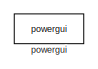
[diagram: root canvas - part 1/19, top left region]
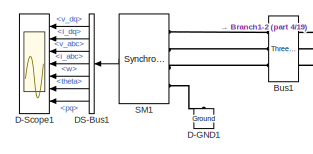
[diagram: root canvas - part 2/19, top left region]
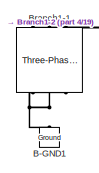
[diagram: root canvas - part 3/19, top left region]
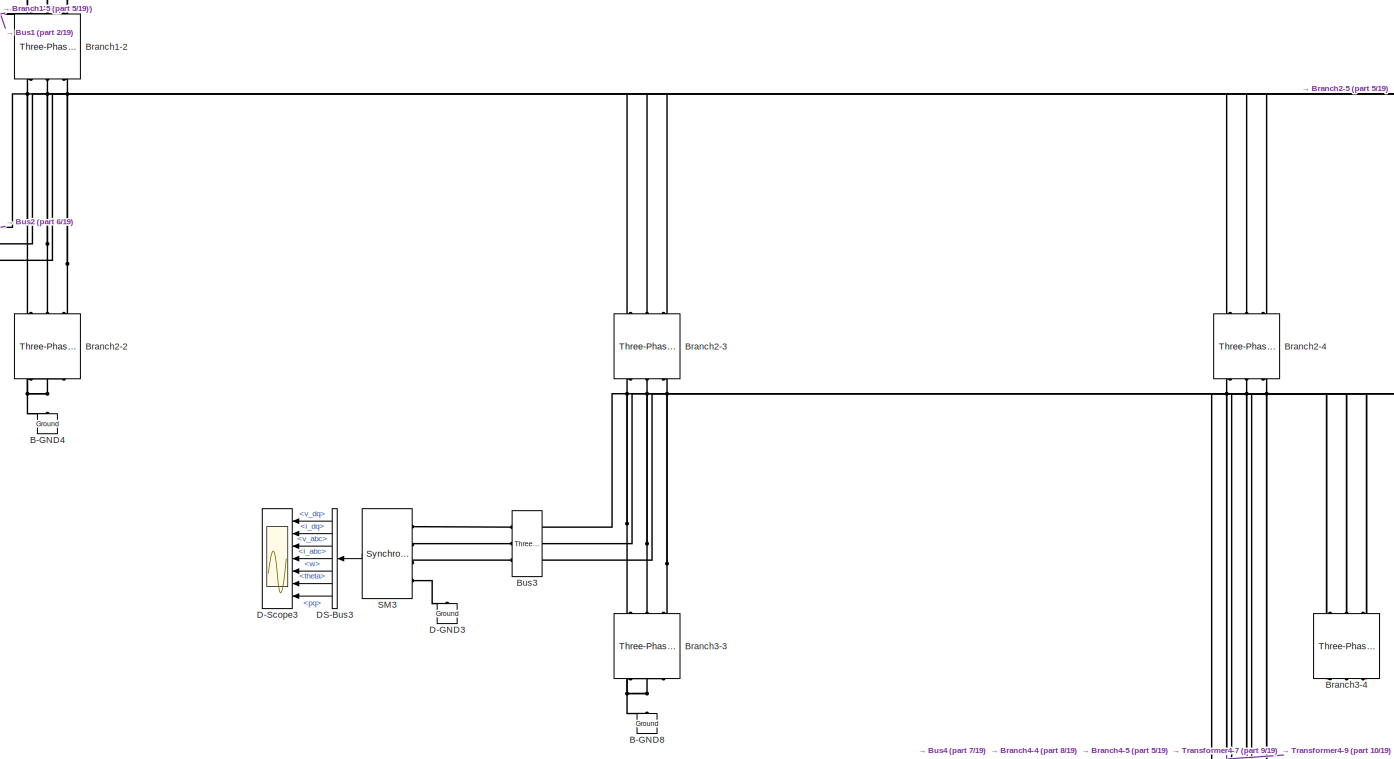
[diagram: root canvas - part 4/19, top left region]
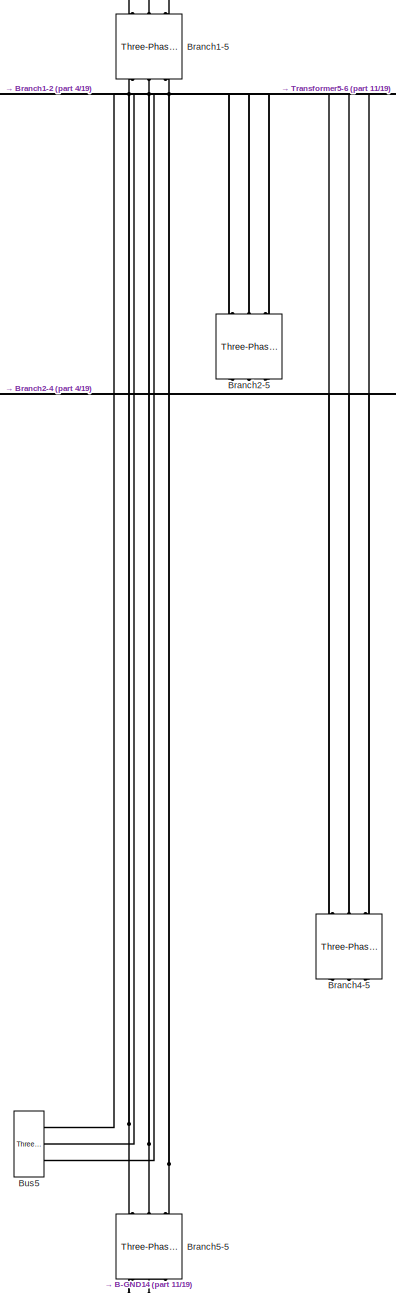
[diagram: root canvas - part 5/19, top center region]
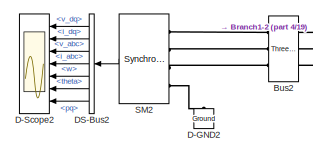
[diagram: root canvas - part 6/19, top left region]
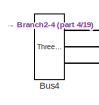
[diagram: root canvas - part 7/19, top left region]
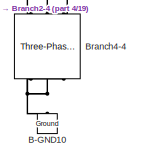
[diagram: root canvas - part 8/19, top left region]
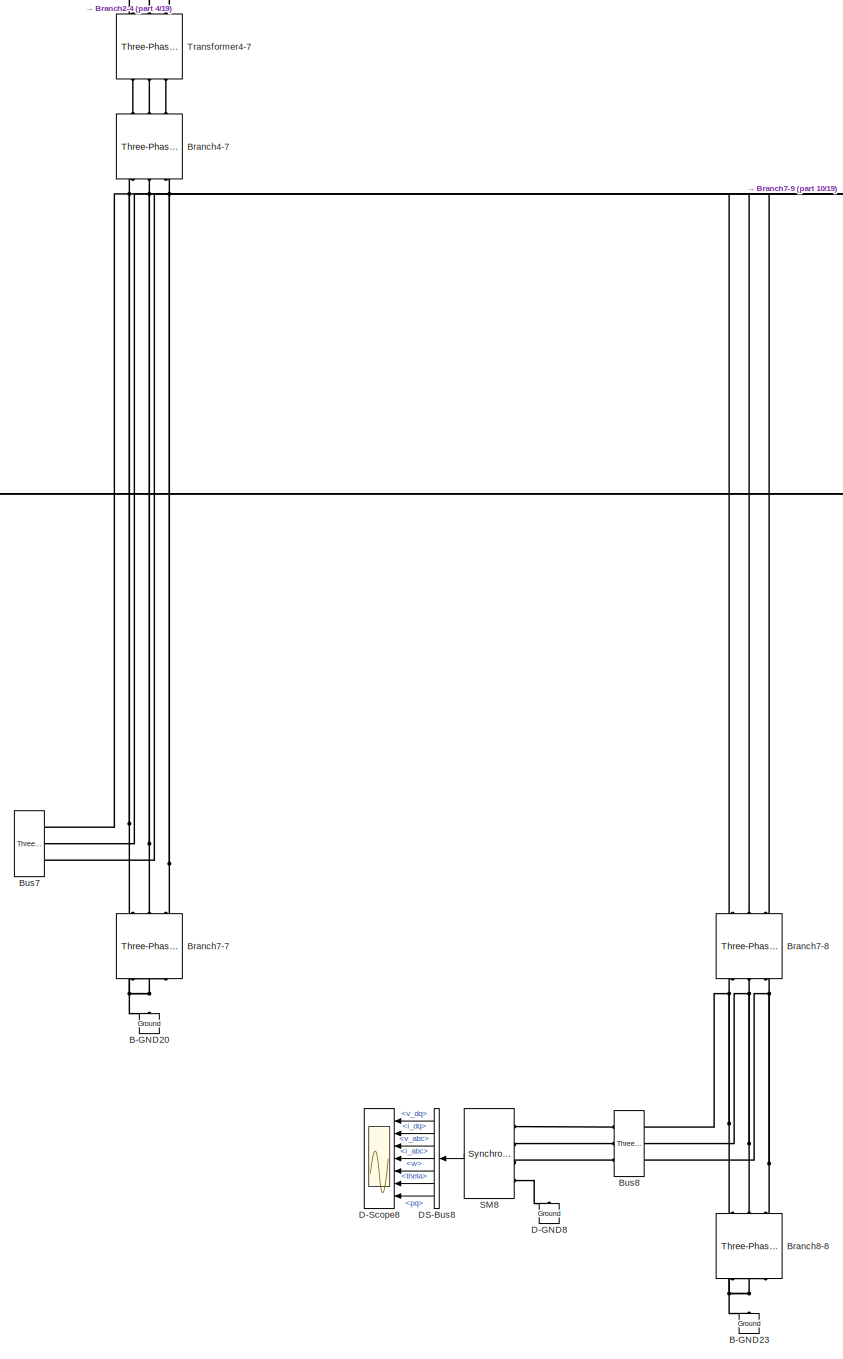
[diagram: root canvas - part 9/19, central region]
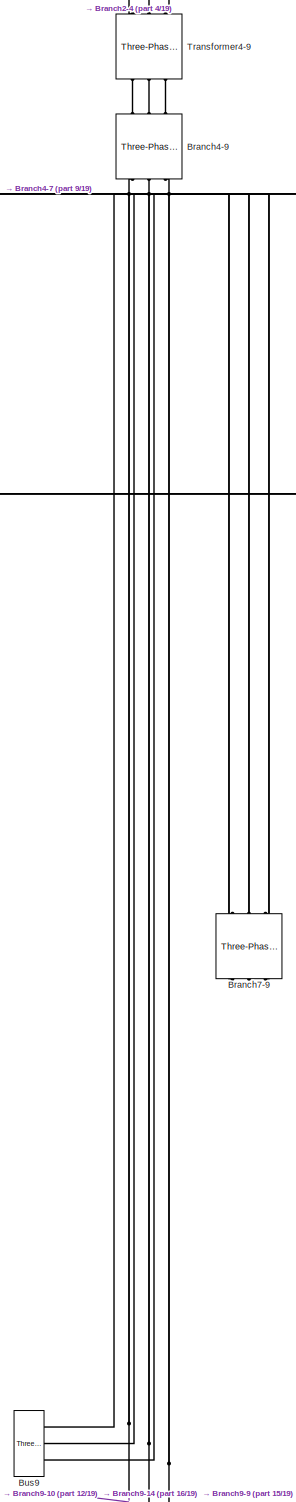
[diagram: root canvas - part 10/19, central region]
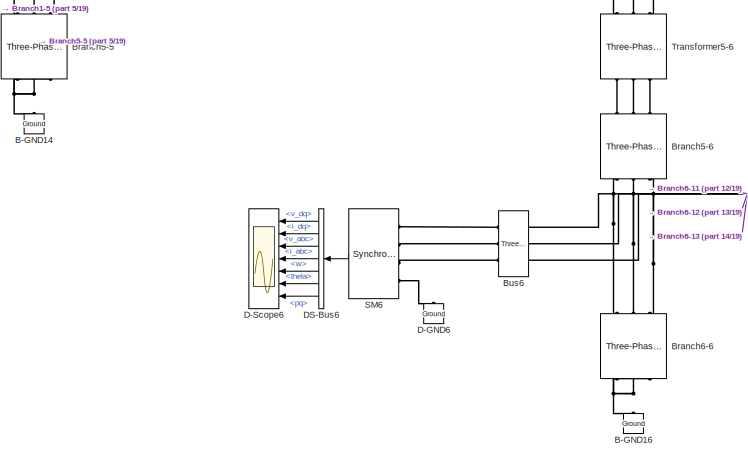
[diagram: root canvas - part 11/19, central region]
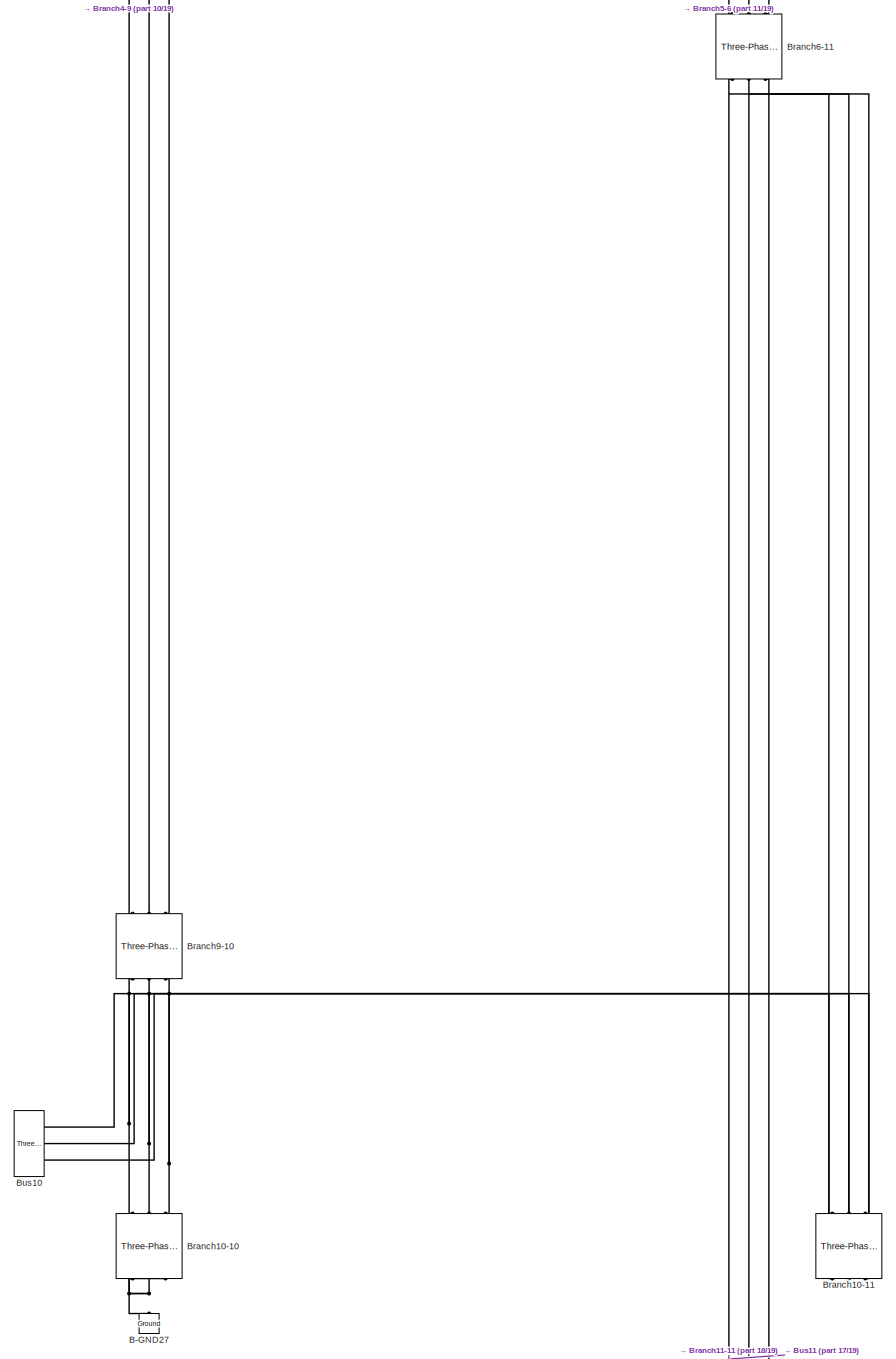
[diagram: root canvas - part 12/19, middle right region]
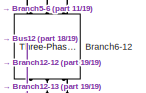
[diagram: root canvas - part 13/19, middle right region]
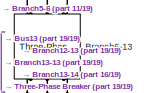
[diagram: root canvas - part 14/19, middle right region]
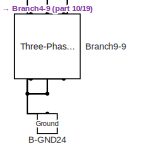
[diagram: root canvas - part 15/19, central region]
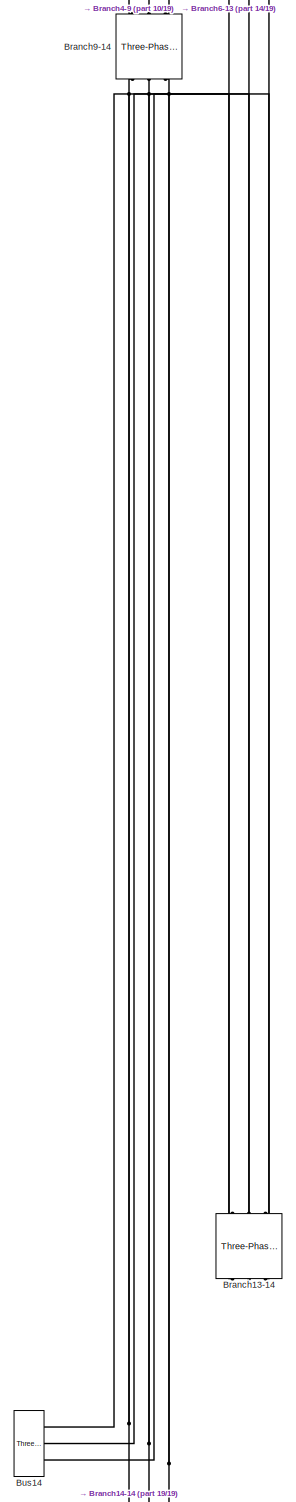
[diagram: root canvas - part 16/19, bottom right region]
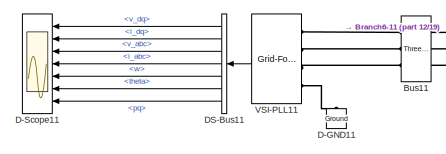
[diagram: root canvas - part 17/19, bottom right region]
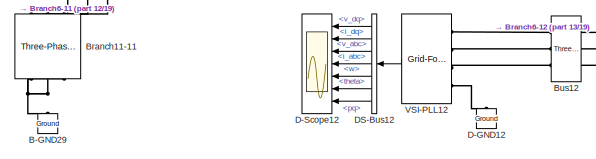
[diagram: root canvas - part 18/19, bottom right region]
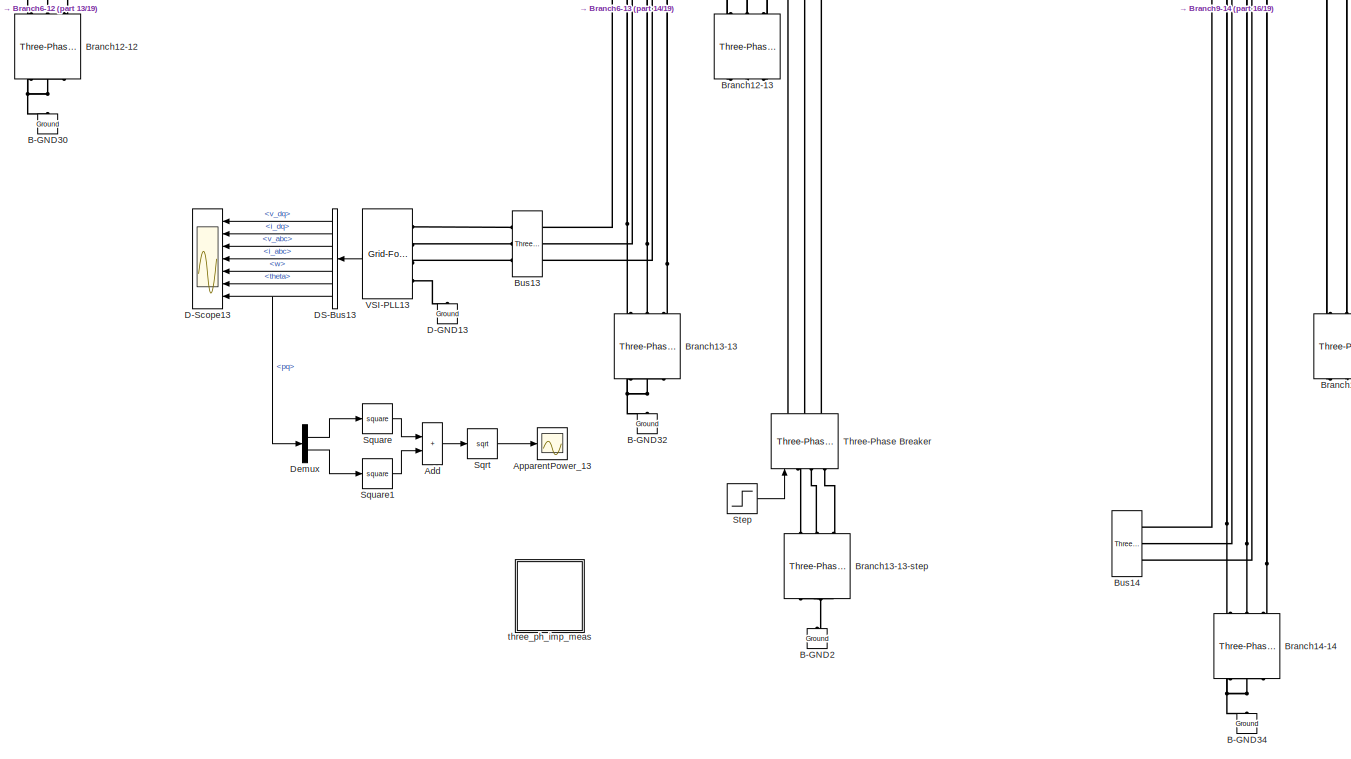
[diagram: root canvas - part 19/19, bottom right region]
MODEL slx_205a70458e50
KIND model
CONFIG AbsTol = auto
CONFIG EnableMultiTasking = off
CONFIG FixedStep = Ts
CONFIG MaxStep = auto
CONFIG MinStep = auto
CONFIG RelTol = 1e-3
CONFIG SampleTimeConstraint = Unconstrained
CONFIG SolverName = FixedStepAuto
CONFIG StartTime = 0
CONFIG StopTime = 40
BLOCK [Sum] Add
  IconShape = rectangular
  Ports = [2, 1]
BLOCK [Scope] ApparentPower_13
  Floating = off
  NumInputPorts = 1
  Ports = [1]
  ScopeSpecificationString = Simulink.scopes.TimeScopeBlockCfg('CurrentConfiguration', extmgr.ConfigurationSet(extmgr.Configuration('Core','General UI',true),extmgr.Configuration('Core','Source UI',true),extmgr.Configuration('Sources','WiredSimulink',true,'DataLoggingVariableName','Scope_S13','DataLogging',true,'DataLoggingSaveFormat','StructureWithTime'),extmgr.Configuration('Visuals','Time Domain',true,'SerializedDisplays',...<+1832ch>
BLOCK [Reference] B-GND1  REF=powerlib/Elements/Ground
  NameLocation = right
  Ports = [0, 0, 0, 0, 0, 1]
  SourceBlock = powerlib/Elements/Ground
  SourceProductBaseCode = PS
  SourceType = Ground
BLOCK [Reference] B-GND10  REF=powerlib/Elements/Ground
  NameLocation = right
  Ports = [0, 0, 0, 0, 0, 1]
  SourceBlock = powerlib/Elements/Ground
  SourceProductBaseCode = PS
  SourceType = Ground
BLOCK [Reference] B-GND14  REF=powerlib/Elements/Ground
  NameLocation = right
  Ports = [0, 0, 0, 0, 0, 1]
  SourceBlock = powerlib/Elements/Ground
  SourceProductBaseCode = PS
  SourceType = Ground
BLOCK [Reference] B-GND16  REF=powerlib/Elements/Ground
  NameLocation = right
  Ports = [0, 0, 0, 0, 0, 1]
  SourceBlock = powerlib/Elements/Ground
  SourceProductBaseCode = PS
  SourceType = Ground
BLOCK [Reference] B-GND2  REF=powerlib/Elements/Ground
  NameLocation = right
  Ports = [0, 0, 0, 0, 0, 1]
  SourceBlock = powerlib/Elements/Ground
  SourceProductBaseCode = PS
  SourceType = Ground
BLOCK [Reference] B-GND20  REF=powerlib/Elements/Ground
  NameLocation = right
  Ports = [0, 0, 0, 0, 0, 1]
  SourceBlock = powerlib/Elements/Ground
  SourceProductBaseCode = PS
  SourceType = Ground
BLOCK [Reference] B-GND23  REF=powerlib/Elements/Ground
  NameLocation = right
  Ports = [0, 0, 0, 0, 0, 1]
  SourceBlock = powerlib/Elements/Ground
  SourceProductBaseCode = PS
  SourceType = Ground
BLOCK [Reference] B-GND24  REF=powerlib/Elements/Ground
  NameLocation = right
  Ports = [0, 0, 0, 0, 0, 1]
  SourceBlock = powerlib/Elements/Ground
  SourceProductBaseCode = PS
  SourceType = Ground
BLOCK [Reference] B-GND27  REF=powerlib/Elements/Ground
  NameLocation = right
  Ports = [0, 0, 0, 0, 0, 1]
  SourceBlock = powerlib/Elements/Ground
  SourceProductBaseCode = PS
  SourceType = Ground
BLOCK [Reference] B-GND29  REF=powerlib/Elements/Ground
  NameLocation = right
  Ports = [0, 0, 0, 0, 0, 1]
  SourceBlock = powerlib/Elements/Ground
  SourceProductBaseCode = PS
  SourceType = Ground
BLOCK [Reference] B-GND30  REF=powerlib/Elements/Ground
  NameLocation = right
  Ports = [0, 0, 0, 0, 0, 1]
  SourceBlock = powerlib/Elements/Ground
  SourceProductBaseCode = PS
  SourceType = Ground
BLOCK [Reference] B-GND32  REF=powerlib/Elements/Ground
  NameLocation = right
  Ports = [0, 0, 0, 0, 0, 1]
  SourceBlock = powerlib/Elements/Ground
  SourceProductBaseCode = PS
  SourceType = Ground
BLOCK [Reference] B-GND34  REF=powerlib/Elements/Ground
  NameLocation = right
  Ports = [0, 0, 0, 0, 0, 1]
  SourceBlock = powerlib/Elements/Ground
  SourceProductBaseCode = PS
  SourceType = Ground
BLOCK [Reference] B-GND4  REF=powerlib/Elements/Ground
  NameLocation = right
  Ports = [0, 0, 0, 0, 0, 1]
  SourceBlock = powerlib/Elements/Ground
  SourceProductBaseCode = PS
  SourceType = Ground
BLOCK [Reference] B-GND8  REF=powerlib/Elements/Ground
  NameLocation = right
  Ports = [0, 0, 0, 0, 0, 1]
  SourceBlock = powerlib/Elements/Ground
  SourceProductBaseCode = PS
  SourceType = Ground
BLOCK [Reference] Branch1-1  REF=powerlib/Elements/Three-Phase
Parallel RLC Branch
  AttributesFormatString = \n
  NameLocation = right
  Ports = [0, 0, 0, 0, 0, 3, 3]
  SourceBlock = powerlib/Elements/Three-Phase\nParallel RLC Branch
  SourceProductBaseCode = PS
  SourceType = Three-Phase Parallel RLC Branch
BLOCK [Reference] Branch1-2  REF=powerlib/Elements/Three-Phase
Series RLC Branch
  AttributesFormatString = \n
  NameLocation = right
  Ports = [0, 0, 0, 0, 0, 3, 3]
  SourceBlock = powerlib/Elements/Three-Phase\nSeries RLC Branch
  SourceProductBaseCode = PS
  SourceType = Three-Phase Series RLC Branch
BLOCK [Reference] Branch1-5  REF=powerlib/Elements/Three-Phase
Series RLC Branch
  AttributesFormatString = \n
  NameLocation = right
  Ports = [0, 0, 0, 0, 0, 3, 3]
  SourceBlock = powerlib/Elements/Three-Phase\nSeries RLC Branch
  SourceProductBaseCode = PS
  SourceType = Three-Phase Series RLC Branch
BLOCK [Reference] Branch10-10  REF=powerlib/Elements/Three-Phase
Parallel RLC Branch
  AttributesFormatString = \n
  NameLocation = right
  Ports = [0, 0, 0, 0, 0, 3, 3]
  SourceBlock = powerlib/Elements/Three-Phase\nParallel RLC Branch
  SourceProductBaseCode = PS
  SourceType = Three-Phase Parallel RLC Branch
BLOCK [Reference] Branch10-11  REF=powerlib/Elements/Three-Phase
Series RLC Branch
  AttributesFormatString = \n
  NameLocation = right
  Ports = [0, 0, 0, 0, 0, 3, 3]
  SourceBlock = powerlib/Elements/Three-Phase\nSeries RLC Branch
  SourceProductBaseCode = PS
  SourceType = Three-Phase Series RLC Branch
BLOCK [Reference] Branch11-11  REF=powerlib/Elements/Three-Phase
Parallel RLC Branch
  AttributesFormatString = \n
  NameLocation = right
  Ports = [0, 0, 0, 0, 0, 3, 3]
  SourceBlock = powerlib/Elements/Three-Phase\nParallel RLC Branch
  SourceProductBaseCode = PS
  SourceType = Three-Phase Parallel RLC Branch
BLOCK [Reference] Branch12-12  REF=powerlib/Elements/Three-Phase
Parallel RLC Branch
  AttributesFormatString = \n
  NameLocation = right
  Ports = [0, 0, 0, 0, 0, 3, 3]
  SourceBlock = powerlib/Elements/Three-Phase\nParallel RLC Branch
  SourceProductBaseCode = PS
  SourceType = Three-Phase Parallel RLC Branch
BLOCK [Reference] Branch12-13  REF=powerlib/Elements/Three-Phase
Series RLC Branch
  AttributesFormatString = \n
  NameLocation = right
  Ports = [0, 0, 0, 0, 0, 3, 3]
  SourceBlock = powerlib/Elements/Three-Phase\nSeries RLC Branch
  SourceProductBaseCode = PS
  SourceType = Three-Phase Series RLC Branch
BLOCK [Reference] Branch13-13  REF=powerlib/Elements/Three-Phase
Parallel RLC Branch
  AttributesFormatString = \n
  NameLocation = right
  Ports = [0, 0, 0, 0, 0, 3, 3]
  SourceBlock = powerlib/Elements/Three-Phase\nParallel RLC Branch
  SourceProductBaseCode = PS
  SourceType = Three-Phase Parallel RLC Branch
BLOCK [Reference] Branch13-13-step  REF=powerlib/Elements/Three-Phase
Parallel RLC Branch
  AttributesFormatString = \n
  NameLocation = right
  Ports = [0, 0, 0, 0, 0, 3, 3]
  SourceBlock = powerlib/Elements/Three-Phase\nParallel RLC Branch
  SourceProductBaseCode = PS
  SourceType = Three-Phase Parallel RLC Branch
BLOCK [Reference] Branch13-14  REF=powerlib/Elements/Three-Phase
Series RLC Branch
  AttributesFormatString = \n
  NameLocation = right
  Ports = [0, 0, 0, 0, 0, 3, 3]
  SourceBlock = powerlib/Elements/Three-Phase\nSeries RLC Branch
  SourceProductBaseCode = PS
  SourceType = Three-Phase Series RLC Branch
BLOCK [Reference] Branch14-14  REF=powerlib/Elements/Three-Phase
Parallel RLC Branch
  AttributesFormatString = \n
  NameLocation = right
  Ports = [0, 0, 0, 0, 0, 3, 3]
  SourceBlock = powerlib/Elements/Three-Phase\nParallel RLC Branch
  SourceProductBaseCode = PS
  SourceType = Three-Phase Parallel RLC Branch
BLOCK [Reference] Branch2-2  REF=powerlib/Elements/Three-Phase
Parallel RLC Branch
  AttributesFormatString = \n
  NameLocation = right
  Ports = [0, 0, 0, 0, 0, 3, 3]
  SourceBlock = powerlib/Elements/Three-Phase\nParallel RLC Branch
  SourceProductBaseCode = PS
  SourceType = Three-Phase Parallel RLC Branch
BLOCK [Reference] Branch2-3  REF=powerlib/Elements/Three-Phase
Series RLC Branch
  AttributesFormatString = \n
  NameLocation = right
  Ports = [0, 0, 0, 0, 0, 3, 3]
  SourceBlock = powerlib/Elements/Three-Phase\nSeries RLC Branch
  SourceProductBaseCode = PS
  SourceType = Three-Phase Series RLC Branch
BLOCK [Reference] Branch2-4  REF=powerlib/Elements/Three-Phase
Series RLC Branch
  AttributesFormatString = \n
  NameLocation = right
  Ports = [0, 0, 0, 0, 0, 3, 3]
  SourceBlock = powerlib/Elements/Three-Phase\nSeries RLC Branch
  SourceProductBaseCode = PS
  SourceType = Three-Phase Series RLC Branch
BLOCK [Reference] Branch2-5  REF=powerlib/Elements/Three-Phase
Series RLC Branch
  AttributesFormatString = \n
  NameLocation = right
  Ports = [0, 0, 0, 0, 0, 3, 3]
  SourceBlock = powerlib/Elements/Three-Phase\nSeries RLC Branch
  SourceProductBaseCode = PS
  SourceType = Three-Phase Series RLC Branch
BLOCK [Reference] Branch3-3  REF=powerlib/Elements/Three-Phase
Parallel RLC Branch
  AttributesFormatString = \n
  NameLocation = right
  Ports = [0, 0, 0, 0, 0, 3, 3]
  SourceBlock = powerlib/Elements/Three-Phase\nParallel RLC Branch
  SourceProductBaseCode = PS
  SourceType = Three-Phase Parallel RLC Branch
BLOCK [Reference] Branch3-4  REF=powerlib/Elements/Three-Phase
Series RLC Branch
  AttributesFormatString = \n
  NameLocation = right
  Ports = [0, 0, 0, 0, 0, 3, 3]
  SourceBlock = powerlib/Elements/Three-Phase\nSeries RLC Branch
  SourceProductBaseCode = PS
  SourceType = Three-Phase Series RLC Branch
BLOCK [Reference] Branch4-4  REF=powerlib/Elements/Three-Phase
Parallel RLC Branch
  AttributesFormatString = \n
  NameLocation = right
  Ports = [0, 0, 0, 0, 0, 3, 3]
  SourceBlock = powerlib/Elements/Three-Phase\nParallel RLC Branch
  SourceProductBaseCode = PS
  SourceType = Three-Phase Parallel RLC Branch
BLOCK [Reference] Branch4-5  REF=powerlib/Elements/Three-Phase
Series RLC Branch
  AttributesFormatString = \n
  NameLocation = right
  Ports = [0, 0, 0, 0, 0, 3, 3]
  SourceBlock = powerlib/Elements/Three-Phase\nSeries RLC Branch
  SourceProductBaseCode = PS
  SourceType = Three-Phase Series RLC Branch
BLOCK [Reference] Branch4-7  REF=powerlib/Elements/Three-Phase
Series RLC Branch
  AttributesFormatString = \n
  NameLocation = right
  Ports = [0, 0, 0, 0, 0, 3, 3]
  SourceBlock = powerlib/Elements/Three-Phase\nSeries RLC Branch
  SourceProductBaseCode = PS
  SourceType = Three-Phase Series RLC Branch
BLOCK [Reference] Branch4-9  REF=powerlib/Elements/Three-Phase
Series RLC Branch
  AttributesFormatString = \n
  NameLocation = right
  Ports = [0, 0, 0, 0, 0, 3, 3]
  SourceBlock = powerlib/Elements/Three-Phase\nSeries RLC Branch
  SourceProductBaseCode = PS
  SourceType = Three-Phase Series RLC Branch
BLOCK [Reference] Branch5-5  REF=powerlib/Elements/Three-Phase
Parallel RLC Branch
  AttributesFormatString = \n
  NameLocation = right
  Ports = [0, 0, 0, 0, 0, 3, 3]
  SourceBlock = powerlib/Elements/Three-Phase\nParallel RLC Branch
  SourceProductBaseCode = PS
  SourceType = Three-Phase Parallel RLC Branch
BLOCK [Reference] Branch5-6  REF=powerlib/Elements/Three-Phase
Series RLC Branch
  AttributesFormatString = \n
  NameLocation = right
  Ports = [0, 0, 0, 0, 0, 3, 3]
  SourceBlock = powerlib/Elements/Three-Phase\nSeries RLC Branch
  SourceProductBaseCode = PS
  SourceType = Three-Phase Series RLC Branch
BLOCK [Reference] Branch6-11  REF=powerlib/Elements/Three-Phase
Series RLC Branch
  AttributesFormatString = \n
  NameLocation = right
  Ports = [0, 0, 0, 0, 0, 3, 3]
  SourceBlock = powerlib/Elements/Three-Phase\nSeries RLC Branch
  SourceProductBaseCode = PS
  SourceType = Three-Phase Series RLC Branch
BLOCK [Reference] Branch6-12  REF=powerlib/Elements/Three-Phase
Series RLC Branch
  AttributesFormatString = \n
  NameLocation = right
  Ports = [0, 0, 0, 0, 0, 3, 3]
  SourceBlock = powerlib/Elements/Three-Phase\nSeries RLC Branch
  SourceProductBaseCode = PS
  SourceType = Three-Phase Series RLC Branch
BLOCK [Reference] Branch6-13  REF=powerlib/Elements/Three-Phase
Series RLC Branch
  AttributesFormatString = \n
  NameLocation = right
  Ports = [0, 0, 0, 0, 0, 3, 3]
  SourceBlock = powerlib/Elements/Three-Phase\nSeries RLC Branch
  SourceProductBaseCode = PS
  SourceType = Three-Phase Series RLC Branch
BLOCK [Reference] Branch6-6  REF=powerlib/Elements/Three-Phase
Parallel RLC Branch
  AttributesFormatString = \n
  NameLocation = right
  Ports = [0, 0, 0, 0, 0, 3, 3]
  SourceBlock = powerlib/Elements/Three-Phase\nParallel RLC Branch
  SourceProductBaseCode = PS
  SourceType = Three-Phase Parallel RLC Branch
BLOCK [Reference] Branch7-7  REF=powerlib/Elements/Three-Phase
Parallel RLC Branch
  AttributesFormatString = \n
  NameLocation = right
  Ports = [0, 0, 0, 0, 0, 3, 3]
  SourceBlock = powerlib/Elements/Three-Phase\nParallel RLC Branch
  SourceProductBaseCode = PS
  SourceType = Three-Phase Parallel RLC Branch
BLOCK [Reference] Branch7-8  REF=powerlib/Elements/Three-Phase
Series RLC Branch
  AttributesFormatString = \n
  NameLocation = right
  Ports = [0, 0, 0, 0, 0, 3, 3]
  SourceBlock = powerlib/Elements/Three-Phase\nSeries RLC Branch
  SourceProductBaseCode = PS
  SourceType = Three-Phase Series RLC Branch
BLOCK [Reference] Branch7-9  REF=powerlib/Elements/Three-Phase
Series RLC Branch
  AttributesFormatString = \n
  NameLocation = right
  Ports = [0, 0, 0, 0, 0, 3, 3]
  SourceBlock = powerlib/Elements/Three-Phase\nSeries RLC Branch
  SourceProductBaseCode = PS
  SourceType = Three-Phase Series RLC Branch
BLOCK [Reference] Branch8-8  REF=powerlib/Elements/Three-Phase
Parallel RLC Branch
  AttributesFormatString = \n
  NameLocation = right
  Ports = [0, 0, 0, 0, 0, 3, 3]
  SourceBlock = powerlib/Elements/Three-Phase\nParallel RLC Branch
  SourceProductBaseCode = PS
  SourceType = Three-Phase Parallel RLC Branch
BLOCK [Reference] Branch9-10  REF=powerlib/Elements/Three-Phase
Series RLC Branch
  AttributesFormatString = \n
  NameLocation = right
  Ports = [0, 0, 0, 0, 0, 3, 3]
  SourceBlock = powerlib/Elements/Three-Phase\nSeries RLC Branch
  SourceProductBaseCode = PS
  SourceType = Three-Phase Series RLC Branch
BLOCK [Reference] Branch9-14  REF=powerlib/Elements/Three-Phase
Series RLC Branch
  AttributesFormatString = \n
  NameLocation = right
  Ports = [0, 0, 0, 0, 0, 3, 3]
  SourceBlock = powerlib/Elements/Three-Phase\nSeries RLC Branch
  SourceProductBaseCode = PS
  SourceType = Three-Phase Series RLC Branch
BLOCK [Reference] Branch9-9  REF=powerlib/Elements/Three-Phase
Parallel RLC Branch
  AttributesFormatString = \n
  NameLocation = right
  Ports = [0, 0, 0, 0, 0, 3, 3]
  SourceBlock = powerlib/Elements/Three-Phase\nParallel RLC Branch
  SourceProductBaseCode = PS
  SourceType = Three-Phase Parallel RLC Branch
BLOCK [Reference] Bus1  REF=SimplusGT/Three-Phase Bus
  Ports = [0, 0, 0, 0, 0, 3, 3]
  SourceBlock = SimplusGT/Three-Phase Bus
  SourceProductName = Simplus Grid Tool
BLOCK [Reference] Bus10  REF=SimplusGT/Three-Phase Bus
  Ports = [0, 0, 0, 0, 0, 3, 3]
  SourceBlock = SimplusGT/Three-Phase Bus
  SourceProductName = Simplus Grid Tool
BLOCK [Reference] Bus11  REF=SimplusGT/Three-Phase Bus
  Ports = [0, 0, 0, 0, 0, 3, 3]
  SourceBlock = SimplusGT/Three-Phase Bus
  SourceProductName = Simplus Grid Tool
BLOCK [Reference] Bus12  REF=SimplusGT/Three-Phase Bus
  Ports = [0, 0, 0, 0, 0, 3, 3]
  SourceBlock = SimplusGT/Three-Phase Bus
  SourceProductName = Simplus Grid Tool
BLOCK [Reference] Bus13  REF=SimplusGT/Three-Phase Bus
  Ports = [0, 0, 0, 0, 0, 3, 3]
  SourceBlock = SimplusGT/Three-Phase Bus
  SourceProductName = Simplus Grid Tool
BLOCK [Reference] Bus14  REF=SimplusGT/Three-Phase Bus
  Ports = [0, 0, 0, 0, 0, 3, 3]
  SourceBlock = SimplusGT/Three-Phase Bus
  SourceProductName = Simplus Grid Tool
BLOCK [Reference] Bus2  REF=SimplusGT/Three-Phase Bus
  Ports = [0, 0, 0, 0, 0, 3, 3]
  SourceBlock = SimplusGT/Three-Phase Bus
  SourceProductName = Simplus Grid Tool
BLOCK [Reference] Bus3  REF=SimplusGT/Three-Phase Bus
  Ports = [0, 0, 0, 0, 0, 3, 3]
  SourceBlock = SimplusGT/Three-Phase Bus
  SourceProductName = Simplus Grid Tool
BLOCK [Reference] Bus4  REF=SimplusGT/Three-Phase Bus
  Ports = [0, 0, 0, 0, 0, 3, 3]
  SourceBlock = SimplusGT/Three-Phase Bus
  SourceProductName = Simplus Grid Tool
BLOCK [Reference] Bus5  REF=SimplusGT/Three-Phase Bus
  Ports = [0, 0, 0, 0, 0, 3, 3]
  SourceBlock = SimplusGT/Three-Phase Bus
  SourceProductName = Simplus Grid Tool
BLOCK [Reference] Bus6  REF=SimplusGT/Three-Phase Bus
  Ports = [0, 0, 0, 0, 0, 3, 3]
  SourceBlock = SimplusGT/Three-Phase Bus
  SourceProductName = Simplus Grid Tool
BLOCK [Reference] Bus7  REF=SimplusGT/Three-Phase Bus
  Ports = [0, 0, 0, 0, 0, 3, 3]
  SourceBlock = SimplusGT/Three-Phase Bus
  SourceProductName = Simplus Grid Tool
BLOCK [Reference] Bus8  REF=SimplusGT/Three-Phase Bus
  Ports = [0, 0, 0, 0, 0, 3, 3]
  SourceBlock = SimplusGT/Three-Phase Bus
  SourceProductName = Simplus Grid Tool
BLOCK [Reference] Bus9  REF=SimplusGT/Three-Phase Bus
  Ports = [0, 0, 0, 0, 0, 3, 3]
  SourceBlock = SimplusGT/Three-Phase Bus
  SourceProductName = Simplus Grid Tool
BLOCK [Reference] D-GND1  REF=powerlib/Elements/Ground
  NameLocation = right
  Ports = [0, 0, 0, 0, 0, 1]
  SourceBlock = powerlib/Elements/Ground
  SourceProductBaseCode = PS
  SourceType = Ground
BLOCK [Reference] D-GND11  REF=powerlib/Elements/Ground
  NameLocation = right
  Ports = [0, 0, 0, 0, 0, 1]
  SourceBlock = powerlib/Elements/Ground
  SourceProductBaseCode = PS
  SourceType = Ground
BLOCK [Reference] D-GND12  REF=powerlib/Elements/Ground
  NameLocation = right
  Ports = [0, 0, 0, 0, 0, 1]
  SourceBlock = powerlib/Elements/Ground
  SourceProductBaseCode = PS
  SourceType = Ground
BLOCK [Reference] D-GND13  REF=powerlib/Elements/Ground
  NameLocation = right
  Ports = [0, 0, 0, 0, 0, 1]
  SourceBlock = powerlib/Elements/Ground
  SourceProductBaseCode = PS
  SourceType = Ground
BLOCK [Reference] D-GND2  REF=powerlib/Elements/Ground
  NameLocation = right
  Ports = [0, 0, 0, 0, 0, 1]
  SourceBlock = powerlib/Elements/Ground
  SourceProductBaseCode = PS
  SourceType = Ground
BLOCK [Reference] D-GND3  REF=powerlib/Elements/Ground
  NameLocation = right
  Ports = [0, 0, 0, 0, 0, 1]
  SourceBlock = powerlib/Elements/Ground
  SourceProductBaseCode = PS
  SourceType = Ground
BLOCK [Reference] D-GND6  REF=powerlib/Elements/Ground
  NameLocation = right
  Ports = [0, 0, 0, 0, 0, 1]
  SourceBlock = powerlib/Elements/Ground
  SourceProductBaseCode = PS
  SourceType = Ground
BLOCK [Reference] D-GND8  REF=powerlib/Elements/Ground
  NameLocation = right
  Ports = [0, 0, 0, 0, 0, 1]
  SourceBlock = powerlib/Elements/Ground
  SourceProductBaseCode = PS
  SourceType = Ground
BLOCK [Scope] D-Scope1
  Floating = off
  NumInputPorts = 7
  Ports = [7]
  ScopeSpecificationString = Simulink.scopes.TimeScopeBlockCfg('CurrentConfiguration', extmgr.ConfigurationSet(extmgr.Configuration('Core','General UI',true),extmgr.Configuration('Core','Source UI',true),extmgr.Configuration('Sources','WiredSimulink',true),extmgr.Configuration('Visuals','Time Domain',true,'SerializedDisplays',{struct('MinYLimReal','-0.21285','MaxYLimReal','1.85988','YLabelReal','','MinYLimMag','0.00000','MaxY...<+5600ch>
BLOCK [Scope] D-Scope11
  Floating = off
  NumInputPorts = 7
  Ports = [7]
  ScopeSpecificationString = Simulink.scopes.TimeScopeBlockCfg('CurrentConfiguration', extmgr.ConfigurationSet(extmgr.Configuration('Core','General UI',true),extmgr.Configuration('Core','Source UI',true),extmgr.Configuration('Sources','WiredSimulink',true),extmgr.Configuration('Visuals','Time Domain',true,'SerializedDisplays',{struct('MinYLimReal','-0.20421','MaxYLimReal','1.2551','YLabelReal','','MinYLimMag','0.00000','MaxYL...<+5959ch>
BLOCK [Scope] D-Scope12
  Floating = off
  NumInputPorts = 7
  Ports = [7]
  ScopeSpecificationString = Simulink.scopes.TimeScopeBlockCfg('CurrentConfiguration', extmgr.ConfigurationSet(extmgr.Configuration('Core','General UI',true),extmgr.Configuration('Core','Source UI',true),extmgr.Configuration('Sources','WiredSimulink',true),extmgr.Configuration('Visuals','Time Domain',true,'SerializedDisplays',{struct('MinYLimReal','-0.18712','MaxYLimReal','1.26048','YLabelReal','','MinYLimMag','0.00000','MaxY...<+5987ch>
BLOCK [Scope] D-Scope13
  Floating = off
  NumInputPorts = 7
  Ports = [7]
  ScopeSpecificationString = Simulink.scopes.TimeScopeBlockCfg('CurrentConfiguration', extmgr.ConfigurationSet(extmgr.Configuration('Core','General UI',true),extmgr.Configuration('Core','Source UI',true),extmgr.Configuration('Sources','WiredSimulink',true),extmgr.Configuration('Visuals','Time Domain',true,'SerializedDisplays',{struct('MinYLimReal','-0.17265','MaxYLimReal','1.22724','YLabelReal','','MinYLimMag','0.00000','MaxY...<+5543ch>
BLOCK [Scope] D-Scope2
  Floating = off
  NumInputPorts = 7
  Ports = [7]
  ScopeSpecificationString = Simulink.scopes.TimeScopeBlockCfg('CurrentConfiguration', extmgr.ConfigurationSet(extmgr.Configuration('Core','General UI',true),extmgr.Configuration('Core','Source UI',true),extmgr.Configuration('Sources','WiredSimulink',true),extmgr.Configuration('Visuals','Time Domain',true,'SerializedDisplays',{struct('MinYLimReal','-0.25004','MaxYLimReal','1.85438','YLabelReal','','MinYLimMag','0.00000','MaxY...<+5544ch>
BLOCK [Scope] D-Scope3
  Floating = off
  NumInputPorts = 7
  Ports = [7]
  ScopeSpecificationString = Simulink.scopes.TimeScopeBlockCfg('CurrentConfiguration', extmgr.ConfigurationSet(extmgr.Configuration('Core','General UI',true),extmgr.Configuration('Core','Source UI',true),extmgr.Configuration('Sources','WiredSimulink',true),extmgr.Configuration('Visuals','Time Domain',true,'SerializedDisplays',{struct('MinYLimReal','-0.24066','MaxYLimReal','1.34262','YLabelReal','','MinYLimMag','0.00000','MaxY...<+5543ch>
BLOCK [Scope] D-Scope6
  Floating = off
  NumInputPorts = 7
  Ports = [7]
  ScopeSpecificationString = Simulink.scopes.TimeScopeBlockCfg('CurrentConfiguration', extmgr.ConfigurationSet(extmgr.Configuration('Core','General UI',true),extmgr.Configuration('Core','Source UI',true),extmgr.Configuration('Sources','WiredSimulink',true),extmgr.Configuration('Visuals','Time Domain',true,'SerializedDisplays',{struct('MinYLimReal','-0.18759','MaxYLimReal','1.23803','YLabelReal','','MinYLimMag','0.00000','MaxY...<+5628ch>
BLOCK [Scope] D-Scope8
  Floating = off
  NumInputPorts = 7
  Ports = [7]
  ScopeSpecificationString = Simulink.scopes.TimeScopeBlockCfg('CurrentConfiguration', extmgr.ConfigurationSet(extmgr.Configuration('Core','General UI',true),extmgr.Configuration('Core','Source UI',true),extmgr.Configuration('Sources','WiredSimulink',true),extmgr.Configuration('Visuals','Time Domain',true,'SerializedDisplays',{struct('MinYLimReal','-5.82637','MaxYLimReal','5.84122','YLabelReal','','MinYLimMag','0.00000','MaxY...<+5542ch>
BLOCK [BusSelector] DS-Bus1
  OutputSignals = v_dq,i_dq,v_abc,i_abc,w,theta,pq
  Ports = [1, 7]
BLOCK [BusSelector] DS-Bus11
  OutputSignals = v_dq,i_dq,v_abc,i_abc,w,theta,pq
  Ports = [1, 7]
BLOCK [BusSelector] DS-Bus12
  OutputSignals = v_dq,i_dq,v_abc,i_abc,w,theta,pq
  Ports = [1, 7]
BLOCK [BusSelector] DS-Bus13
  OutputSignals = v_dq,i_dq,v_abc,i_abc,w,theta,pq
  Ports = [1, 7]
BLOCK [BusSelector] DS-Bus2
  OutputSignals = v_dq,i_dq,v_abc,i_abc,w,theta,pq
  Ports = [1, 7]
BLOCK [BusSelector] DS-Bus3
  OutputSignals = v_dq,i_dq,v_abc,i_abc,w,theta,pq
  Ports = [1, 7]
BLOCK [BusSelector] DS-Bus6
  OutputSignals = v_dq,i_dq,v_abc,i_abc,w,theta,pq
  Ports = [1, 7]
BLOCK [BusSelector] DS-Bus8
  OutputSignals = v_dq,i_dq,v_abc,i_abc,w,theta,pq
  Ports = [1, 7]
BLOCK [Demux] Demux
  Outputs = 2
  Ports = [1, 2]
BLOCK [Reference] SM1  REF=SimplusGT/SynchronousMachineFull_Cyp_SMAVRPSSGOV (dq-Frame System Object)
  Ports = [0, 1, 0, 0, 0, 4]
  SourceBlock = SimplusGT/SynchronousMachineFull_Cyp_SMAVRPSSGOV (dq-Frame System Object)
  SourceProductName = Simplus Grid Tool
BLOCK [Reference] SM2  REF=SimplusGT/SynchronousMachineFull_Cyp_SMAVRPSSGOV (dq-Frame System Object)
  Ports = [0, 1, 0, 0, 0, 4]
  SourceBlock = SimplusGT/SynchronousMachineFull_Cyp_SMAVRPSSGOV (dq-Frame System Object)
  SourceProductName = Simplus Grid Tool
BLOCK [Reference] SM3  REF=SimplusGT/SynchronousMachineFull_Cyp_SMAVR (dq-Frame System Object)
  Ports = [0, 1, 0, 0, 0, 4]
  SourceBlock = SimplusGT/SynchronousMachineFull_Cyp_SMAVR (dq-Frame System Object)
  SourceProductName = Simplus Grid Tool
BLOCK [Reference] SM6  REF=SimplusGT/SynchronousMachineFull_Cyp_SMAVR (dq-Frame System Object)
  Ports = [0, 1, 0, 0, 0, 4]
  SourceBlock = SimplusGT/SynchronousMachineFull_Cyp_SMAVR (dq-Frame System Object)
  SourceProductName = Simplus Grid Tool
BLOCK [Reference] SM8  REF=SimplusGT/SynchronousMachineFull_Cyp_SMAVR (dq-Frame System Object)
  Ports = [0, 1, 0, 0, 0, 4]
  SourceBlock = SimplusGT/SynchronousMachineFull_Cyp_SMAVR (dq-Frame System Object)
  SourceProductName = Simplus Grid Tool
BLOCK [Sqrt] Sqrt
BLOCK [Math] Square
  Operator = square
  Ports = [1, 1]
  SignedPower = on
BLOCK [Math] Square1
  Operator = square
  Ports = [1, 1]
  SignedPower = on
BLOCK [Step] Step
  SampleTime = 0
  Time = 35
BLOCK [Reference] Three-Phase Breaker  REF=powerlib/Elements/Three-Phase Breaker
  NameLocation = right
  Ports = [1, 0, 0, 0, 0, 3, 3]
  SourceBlock = powerlib/Elements/Three-Phase Breaker
  SourceProductBaseCode = PS
  SourceType = Three-Phase Breaker
BLOCK [Reference] Transformer4-7  REF=powerlib/Elements/Three-Phase
Transformer
(Two Windings)
  NameLocation = right
  Ports = [0, 0, 0, 0, 0, 3, 3]
  SourceBlock = powerlib/Elements/Three-Phase\nTransformer\n(Two Windings)
  SourceProductBaseCode = PS
  SourceType = Three-Phase Transformer (Two Windings)
BLOCK [Reference] Transformer4-9  REF=powerlib/Elements/Three-Phase
Transformer
(Two Windings)
  NameLocation = right
  Ports = [0, 0, 0, 0, 0, 3, 3]
  SourceBlock = powerlib/Elements/Three-Phase\nTransformer\n(Two Windings)
  SourceProductBaseCode = PS
  SourceType = Three-Phase Transformer (Two Windings)
BLOCK [Reference] Transformer5-6  REF=powerlib/Elements/Three-Phase
Transformer
(Two Windings)
  NameLocation = right
  Ports = [0, 0, 0, 0, 0, 3, 3]
  SourceBlock = powerlib/Elements/Three-Phase\nTransformer\n(Two Windings)
  SourceProductBaseCode = PS
  SourceType = Three-Phase Transformer (Two Windings)
BLOCK [Reference] VSI-PLL11  REF=SimplusGT/Grid-Following
Voltage-Source Inverter
(dq-Frame System Object)
  Ports = [0, 1, 0, 0, 0, 4]
  SourceBlock = SimplusGT/Grid-Following\nVoltage-Source Inverter\n(dq-Frame System Object)
  SourceProductName = Simplus Grid Tool
BLOCK [Reference] VSI-PLL12  REF=SimplusGT/Grid-Following
Voltage-Source Inverter
(dq-Frame System Object)
  Ports = [0, 1, 0, 0, 0, 4]
  SourceBlock = SimplusGT/Grid-Following\nVoltage-Source Inverter\n(dq-Frame System Object)
  SourceProductName = Simplus Grid Tool
BLOCK [Reference] VSI-PLL13  REF=SimplusGT/Grid-Following
Voltage-Source Inverter
(dq-Frame System Object)
  Ports = [0, 1, 0, 0, 0, 4]
  SourceBlock = SimplusGT/Grid-Following\nVoltage-Source Inverter\n(dq-Frame System Object)
  SourceProductName = Simplus Grid Tool
BLOCK [Reference] powergui  REF=powerlib/powergui
  Ports = []
  Priority = 1
  SourceBlock = powerlib/powergui
  SourceProductBaseCode = PS
  SourceType = PSB option menu block
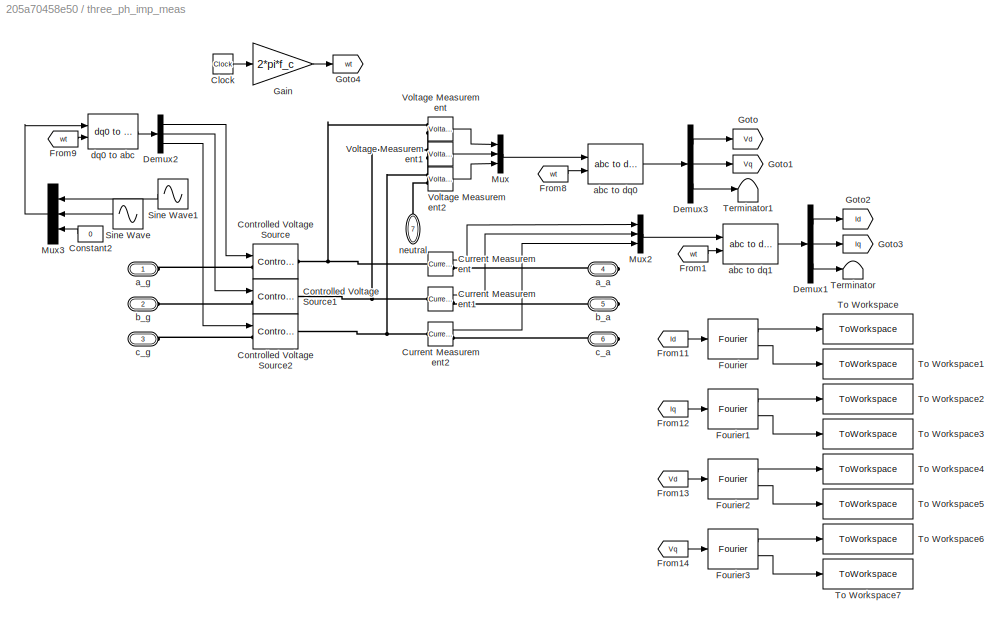
BLOCK [SubSystem] three_ph_imp_meas
  Ports = [0, 0, 0, 0, 0, 4, 3]
  RequestExecContextInheritance = off
BLOCK [Clock] three_ph_imp_meas/Clock
BLOCK [Constant] three_ph_imp_meas/Constant2
  NameLocation = top
  Value = 0
BLOCK [Reference] three_ph_imp_meas/Controlled Voltage Source  REF=powerlib/Electrical
Sources/Controlled Voltage Source
  Ports = [1, 0, 0, 0, 0, 1, 1]
  SourceBlock = powerlib/Electrical\nSources/Controlled Voltage Source
  SourceProductBaseCode = PS
  SourceType = Controlled Voltage Source
BLOCK [Reference] three_ph_imp_meas/Controlled Voltage Source1  REF=powerlib/Electrical
Sources/Controlled Voltage Source
  Ports = [1, 0, 0, 0, 0, 1, 1]
  SourceBlock = powerlib/Electrical\nSources/Controlled Voltage Source
  SourceProductBaseCode = PS
  SourceType = Controlled Voltage Source
BLOCK [Reference] three_ph_imp_meas/Controlled Voltage Source2  REF=powerlib/Electrical
Sources/Controlled Voltage Source
  Ports = [1, 0, 0, 0, 0, 1, 1]
  SourceBlock = powerlib/Electrical\nSources/Controlled Voltage Source
  SourceProductBaseCode = PS
  SourceType = Controlled Voltage Source
BLOCK [Reference] three_ph_imp_meas/Current Measurement  REF=powerlib/Measurements/Current Measurement
  Ports = [0, 1, 0, 0, 0, 1, 1]
  SourceBlock = powerlib/Measurements/Current Measurement
  SourceProductBaseCode = PS
  SourceType = Current Measurement
  UserDataPersistent = on
BLOCK [Reference] three_ph_imp_meas/Current Measurement1  REF=powerlib/Measurements/Current Measurement
  Ports = [0, 1, 0, 0, 0, 1, 1]
  SourceBlock = powerlib/Measurements/Current Measurement
  SourceProductBaseCode = PS
  SourceType = Current Measurement
  UserDataPersistent = on
BLOCK [Reference] three_ph_imp_meas/Current Measurement2  REF=powerlib/Measurements/Current Measurement
  Ports = [0, 1, 0, 0, 0, 1, 1]
  SourceBlock = powerlib/Measurements/Current Measurement
  SourceProductBaseCode = PS
  SourceType = Current Measurement
  UserDataPersistent = on
BLOCK [Demux] three_ph_imp_meas/Demux1
  Outputs = 3
  Ports = [1, 3]
BLOCK [Demux] three_ph_imp_meas/Demux2
  Outputs = 3
  Ports = [1, 3]
BLOCK [Demux] three_ph_imp_meas/Demux3
  Outputs = 3
  Ports = [1, 3]
BLOCK [Reference] three_ph_imp_meas/Fourier  REF=powerlib_meascontrol/Measurements/Fourier
  Ports = [1, 2]
  SourceBlock = powerlib_meascontrol/Measurements/Fourier
  SourceProductBaseCode = PS
  SourceType = Fourier
BLOCK [Reference] three_ph_imp_meas/Fourier1  REF=powerlib_meascontrol/Measurements/Fourier
  Ports = [1, 2]
  SourceBlock = powerlib_meascontrol/Measurements/Fourier
  SourceProductBaseCode = PS
  SourceType = Fourier
BLOCK [Reference] three_ph_imp_meas/Fourier2  REF=powerlib_meascontrol/Measurements/Fourier
  Ports = [1, 2]
  SourceBlock = powerlib_meascontrol/Measurements/Fourier
  SourceProductBaseCode = PS
  SourceType = Fourier
BLOCK [Reference] three_ph_imp_meas/Fourier3  REF=powerlib_meascontrol/Measurements/Fourier
  Ports = [1, 2]
  SourceBlock = powerlib_meascontrol/Measurements/Fourier
  SourceProductBaseCode = PS
  SourceType = Fourier
BLOCK [From] three_ph_imp_meas/From1
  GotoTag = wt
BLOCK [From] three_ph_imp_meas/From11
  GotoTag = Id
BLOCK [From] three_ph_imp_meas/From12
  GotoTag = Iq
BLOCK [From] three_ph_imp_meas/From13
  GotoTag = Vd
BLOCK [From] three_ph_imp_meas/From14
  GotoTag = Vq
BLOCK [From] three_ph_imp_meas/From8
  GotoTag = wt
BLOCK [From] three_ph_imp_meas/From9
  GotoTag = wt
BLOCK [Gain] three_ph_imp_meas/Gain
  Gain = 2*pi*f_c
BLOCK [Goto] three_ph_imp_meas/Goto
  GotoTag = Vd
BLOCK [Goto] three_ph_imp_meas/Goto1
  GotoTag = Vq
BLOCK [Goto] three_ph_imp_meas/Goto2
  GotoTag = Id
BLOCK [Goto] three_ph_imp_meas/Goto3
  GotoTag = Iq
BLOCK [Goto] three_ph_imp_meas/Goto4
  GotoTag = wt
BLOCK [Mux] three_ph_imp_meas/Mux
  DisplayOption = bar
  Inputs = 3
  Ports = [3, 1]
BLOCK [Mux] three_ph_imp_meas/Mux2
  DisplayOption = bar
  Inputs = 3
  Ports = [3, 1]
BLOCK [Mux] three_ph_imp_meas/Mux3
  DisplayOption = bar
  Inputs = 3
  NameLocation = top
  Ports = [3, 1]
BLOCK [Sin] three_ph_imp_meas/Sine Wave
  Amplitude = amp(1,2)
  Frequency = 2*pi*freq(1,2)
  NameLocation = top
  Ports = [0, 1]
  SampleTime = 0
BLOCK [Sin] three_ph_imp_meas/Sine Wave1
  Amplitude = amp(1,1)
  Frequency = 2*pi*freq(1,1)
  NameLocation = top
  Ports = [0, 1]
  SampleTime = 0
BLOCK [Terminator] three_ph_imp_meas/Terminator
BLOCK [Terminator] three_ph_imp_meas/Terminator1
BLOCK [ToWorkspace] three_ph_imp_meas/To Workspace
  FixptAsFi = on
  MaxDataPoints = inf
  Ports = [1]
  SampleTime = -1
  VariableName = I_d_mag
BLOCK [ToWorkspace] three_ph_imp_meas/To Workspace1
  FixptAsFi = on
  MaxDataPoints = inf
  Ports = [1]
  SampleTime = -1
  VariableName = I_d_phase
BLOCK [ToWorkspace] three_ph_imp_meas/To Workspace2
  FixptAsFi = on
  MaxDataPoints = inf
  Ports = [1]
  SampleTime = -1
  VariableName = I_q_mag
BLOCK [ToWorkspace] three_ph_imp_meas/To Workspace3
  FixptAsFi = on
  MaxDataPoints = inf
  Ports = [1]
  SampleTime = -1
  VariableName = I_q_phase
BLOCK [ToWorkspace] three_ph_imp_meas/To Workspace4
  FixptAsFi = on
  MaxDataPoints = inf
  Ports = [1]
  SampleTime = -1
  VariableName = V_d_mag
BLOCK [ToWorkspace] three_ph_imp_meas/To Workspace5
  FixptAsFi = on
  MaxDataPoints = inf
  Ports = [1]
  SampleTime = -1
  VariableName = V_d_phase
BLOCK [ToWorkspace] three_ph_imp_meas/To Workspace6
  FixptAsFi = on
  MaxDataPoints = inf
  Ports = [1]
  SampleTime = -1
  VariableName = V_q_mag
BLOCK [ToWorkspace] three_ph_imp_meas/To Workspace7
  FixptAsFi = on
  MaxDataPoints = inf
  Ports = [1]
  SampleTime = -1
  VariableName = V_q_phase
BLOCK [Reference] three_ph_imp_meas/Voltage Measurement  REF=powerlib/Measurements/Voltage Measurement
  Ports = [0, 1, 0, 0, 0, 2]
  SourceBlock = powerlib/Measurements/Voltage Measurement
  SourceProductBaseCode = PS
  SourceType = Voltage Measurement
  UserDataPersistent = on
BLOCK [Reference] three_ph_imp_meas/Voltage Measurement1  REF=powerlib/Measurements/Voltage Measurement
  Ports = [0, 1, 0, 0, 0, 2]
  SourceBlock = powerlib/Measurements/Voltage Measurement
  SourceProductBaseCode = PS
  SourceType = Voltage Measurement
  UserDataPersistent = on
BLOCK [Reference] three_ph_imp_meas/Voltage Measurement2  REF=powerlib/Measurements/Voltage Measurement
  Ports = [0, 1, 0, 0, 0, 2]
  SourceBlock = powerlib/Measurements/Voltage Measurement
  SourceProductBaseCode = PS
  SourceType = Voltage Measurement
  UserDataPersistent = on
BLOCK [PMIOPort] three_ph_imp_meas/a_a
  Port = 4
  Side = Right
BLOCK [PMIOPort] three_ph_imp_meas/a_g
  Side = Left
BLOCK [Reference] three_ph_imp_meas/abc to dq0  REF=powerlib_meascontrol/Transformations/abc to dq0
  Ports = [2, 1]
  SourceBlock = powerlib_meascontrol/Transformations/abc to dq0
  SourceProductBaseCode = PS
  SourceType = abc to dq0 Transformation
BLOCK [Reference] three_ph_imp_meas/abc to dq1  REF=powerlib_meascontrol/Transformations/abc to dq0
  Ports = [2, 1]
  SourceBlock = powerlib_meascontrol/Transformations/abc to dq0
  SourceProductBaseCode = PS
  SourceType = abc to dq0 Transformation
BLOCK [PMIOPort] three_ph_imp_meas/b_a
  Port = 5
  Side = Right
BLOCK [PMIOPort] three_ph_imp_meas/b_g
  Port = 2
  Side = Left
BLOCK [PMIOPort] three_ph_imp_meas/c_a
  Port = 6
  Side = Right
BLOCK [PMIOPort] three_ph_imp_meas/c_g
  Port = 3
  Side = Left
BLOCK [Reference] three_ph_imp_meas/dq0 to abc  REF=powerlib_meascontrol/Transformations/dq0 to abc
  Ports = [2, 1]
  SourceBlock = powerlib_meascontrol/Transformations/dq0 to abc
  SourceProductBaseCode = PS
  SourceType = dq0 to abc Transformation
BLOCK [PMIOPort] three_ph_imp_meas/neutral
  NameLocation = right
  Port = 7
  Side = Left
LINE Add:1 -> Sqrt:1
LINE DS-Bus11:1 -> D-Scope11:1
LINE DS-Bus11:2 -> D-Scope11:2
LINE DS-Bus11:3 -> D-Scope11:3
LINE DS-Bus11:4 -> D-Scope11:4
LINE DS-Bus11:5 -> D-Scope11:5
LINE DS-Bus11:6 -> D-Scope11:6
LINE DS-Bus11:7 -> D-Scope11:7
LINE DS-Bus12:1 -> D-Scope12:1
LINE DS-Bus12:2 -> D-Scope12:2
LINE DS-Bus12:3 -> D-Scope12:3
LINE DS-Bus12:4 -> D-Scope12:4
LINE DS-Bus12:5 -> D-Scope12:5
LINE DS-Bus12:6 -> D-Scope12:6
LINE DS-Bus12:7 -> D-Scope12:7
LINE DS-Bus13:1 -> D-Scope13:1
LINE DS-Bus13:2 -> D-Scope13:2
LINE DS-Bus13:3 -> D-Scope13:3
LINE DS-Bus13:4 -> D-Scope13:4
LINE DS-Bus13:5 -> D-Scope13:5
LINE DS-Bus13:6 -> D-Scope13:6
NET DS-Bus13:7 -> D-Scope13:7, Demux:1
LINE DS-Bus1:1 -> D-Scope1:1
LINE DS-Bus1:2 -> D-Scope1:2
LINE DS-Bus1:3 -> D-Scope1:3
LINE DS-Bus1:4 -> D-Scope1:4
LINE DS-Bus1:5 -> D-Scope1:5
LINE DS-Bus1:6 -> D-Scope1:6
LINE DS-Bus1:7 -> D-Scope1:7
LINE DS-Bus2:1 -> D-Scope2:1
LINE DS-Bus2:2 -> D-Scope2:2
LINE DS-Bus2:3 -> D-Scope2:3
LINE DS-Bus2:4 -> D-Scope2:4
LINE DS-Bus2:5 -> D-Scope2:5
LINE DS-Bus2:6 -> D-Scope2:6
LINE DS-Bus2:7 -> D-Scope2:7
LINE DS-Bus3:1 -> D-Scope3:1
LINE DS-Bus3:2 -> D-Scope3:2
LINE DS-Bus3:3 -> D-Scope3:3
LINE DS-Bus3:4 -> D-Scope3:4
LINE DS-Bus3:5 -> D-Scope3:5
LINE DS-Bus3:6 -> D-Scope3:6
LINE DS-Bus3:7 -> D-Scope3:7
LINE DS-Bus6:1 -> D-Scope6:1
LINE DS-Bus6:2 -> D-Scope6:2
LINE DS-Bus6:3 -> D-Scope6:3
LINE DS-Bus6:4 -> D-Scope6:4
LINE DS-Bus6:5 -> D-Scope6:5
LINE DS-Bus6:6 -> D-Scope6:6
LINE DS-Bus6:7 -> D-Scope6:7
LINE DS-Bus8:1 -> D-Scope8:1
LINE DS-Bus8:2 -> D-Scope8:2
LINE DS-Bus8:3 -> D-Scope8:3
LINE DS-Bus8:4 -> D-Scope8:4
LINE DS-Bus8:5 -> D-Scope8:5
LINE DS-Bus8:6 -> D-Scope8:6
LINE DS-Bus8:7 -> D-Scope8:7
LINE Demux:1 -> Square:1
LINE Demux:2 -> Square1:1
LINE SM1:1 -> DS-Bus1:1
LINE SM2:1 -> DS-Bus2:1
LINE SM3:1 -> DS-Bus3:1
LINE SM6:1 -> DS-Bus6:1
LINE SM8:1 -> DS-Bus8:1
LINE Sqrt:1 -> ApparentPower_13:1
LINE Square1:1 -> Add:2
LINE Square:1 -> Add:1
LINE Step:1 -> Three-Phase Breaker:1
LINE VSI-PLL11:1 -> DS-Bus11:1
LINE VSI-PLL12:1 -> DS-Bus12:1
LINE VSI-PLL13:1 -> DS-Bus13:1
LINE three_ph_imp_meas/Clock:1 -> three_ph_imp_meas/Gain:1
LINE three_ph_imp_meas/Constant2:1 -> three_ph_imp_meas/Mux3:3
LINE three_ph_imp_meas/Current Measurement1:1 -> three_ph_imp_meas/Mux2:2
LINE three_ph_imp_meas/Current Measurement2:1 -> three_ph_imp_meas/Mux2:3
LINE three_ph_imp_meas/Current Measurement:1 -> three_ph_imp_meas/Mux2:1
LINE three_ph_imp_meas/Demux1:1 -> three_ph_imp_meas/Goto2:1
LINE three_ph_imp_meas/Demux1:2 -> three_ph_imp_meas/Goto3:1
LINE three_ph_imp_meas/Demux1:3 -> three_ph_imp_meas/Terminator:1
LINE three_ph_imp_meas/Demux2:1 -> three_ph_imp_meas/Controlled Voltage Source:1
LINE three_ph_imp_meas/Demux2:2 -> three_ph_imp_meas/Controlled Voltage Source1:1
LINE three_ph_imp_meas/Demux2:3 -> three_ph_imp_meas/Controlled Voltage Source2:1
LINE three_ph_imp_meas/Demux3:1 -> three_ph_imp_meas/Goto:1
LINE three_ph_imp_meas/Demux3:2 -> three_ph_imp_meas/Goto1:1
LINE three_ph_imp_meas/Demux3:3 -> three_ph_imp_meas/Terminator1:1
LINE three_ph_imp_meas/Fourier1:1 -> three_ph_imp_meas/To Workspace2:1
LINE three_ph_imp_meas/Fourier1:2 -> three_ph_imp_meas/To Workspace3:1
LINE three_ph_imp_meas/Fourier2:1 -> three_ph_imp_meas/To Workspace4:1
LINE three_ph_imp_meas/Fourier2:2 -> three_ph_imp_meas/To Workspace5:1
LINE three_ph_imp_meas/Fourier3:1 -> three_ph_imp_meas/To Workspace6:1
LINE three_ph_imp_meas/Fourier3:2 -> three_ph_imp_meas/To Workspace7:1
LINE three_ph_imp_meas/Fourier:1 -> three_ph_imp_meas/To Workspace:1
LINE three_ph_imp_meas/Fourier:2 -> three_ph_imp_meas/To Workspace1:1
LINE three_ph_imp_meas/From11:1 -> three_ph_imp_meas/Fourier:1
LINE three_ph_imp_meas/From12:1 -> three_ph_imp_meas/Fourier1:1
LINE three_ph_imp_meas/From13:1 -> three_ph_imp_meas/Fourier2:1
LINE three_ph_imp_meas/From14:1 -> three_ph_imp_meas/Fourier3:1
LINE three_ph_imp_meas/From1:1 -> three_ph_imp_meas/abc to dq1:2
LINE three_ph_imp_meas/From8:1 -> three_ph_imp_meas/abc to dq0:2
LINE three_ph_imp_meas/From9:1 -> three_ph_imp_meas/dq0 to abc:2
LINE three_ph_imp_meas/Gain:1 -> three_ph_imp_meas/Goto4:1
LINE three_ph_imp_meas/Mux2:1 -> three_ph_imp_meas/abc to dq1:1
LINE three_ph_imp_meas/Mux3:1 -> three_ph_imp_meas/dq0 to abc:1
LINE three_ph_imp_meas/Mux:1 -> three_ph_imp_meas/abc to dq0:1
LINE three_ph_imp_meas/Sine Wave1:1 -> three_ph_imp_meas/Mux3:1
LINE three_ph_imp_meas/Sine Wave:1 -> three_ph_imp_meas/Mux3:2
LINE three_ph_imp_meas/Voltage Measurement1:1 -> three_ph_imp_meas/Mux:2
LINE three_ph_imp_meas/Voltage Measurement2:1 -> three_ph_imp_meas/Mux:3
LINE three_ph_imp_meas/Voltage Measurement:1 -> three_ph_imp_meas/Mux:1
LINE three_ph_imp_meas/abc to dq0:1 -> three_ph_imp_meas/Demux3:1
LINE three_ph_imp_meas/abc to dq1:1 -> three_ph_imp_meas/Demux1:1
LINE three_ph_imp_meas/dq0 to abc:1 -> three_ph_imp_meas/Demux2:1
PNET net1: B-GND10:LConn1 -- Branch4-4:RConn1 -- Branch4-4:RConn2 -- Branch4-4:RConn3
PNET net2: B-GND14:LConn1 -- Branch5-5:RConn1 -- Branch5-5:RConn2 -- Branch5-5:RConn3
PNET net3: B-GND16:LConn1 -- Branch6-6:RConn1 -- Branch6-6:RConn2 -- Branch6-6:RConn3
PNET net4: B-GND1:LConn1 -- Branch1-1:RConn1 -- Branch1-1:RConn2 -- Branch1-1:RConn3
PNET net5: B-GND20:LConn1 -- Branch7-7:RConn1 -- Branch7-7:RConn2 -- Branch7-7:RConn3
PNET net6: B-GND23:LConn1 -- Branch8-8:RConn1 -- Branch8-8:RConn2 -- Branch8-8:RConn3
PNET net7: B-GND24:LConn1 -- Branch9-9:RConn1 -- Branch9-9:RConn2 -- Branch9-9:RConn3
PNET net8: B-GND27:LConn1 -- Branch10-10:RConn1 -- Branch10-10:RConn2 -- Branch10-10:RConn3
PNET net9: B-GND29:LConn1 -- Branch11-11:RConn1 -- Branch11-11:RConn2 -- Branch11-11:RConn3
PNET net10: B-GND2:LConn1 -- Branch13-13-step:RConn1 -- Branch13-13-step:RConn2 -- Branch13-13-step:RConn3
PNET net11: B-GND30:LConn1 -- Branch12-12:RConn1 -- Branch12-12:RConn2 -- Branch12-12:RConn3
PNET net12: B-GND32:LConn1 -- Branch13-13:RConn1 -- Branch13-13:RConn2 -- Branch13-13:RConn3
PNET net13: B-GND34:LConn1 -- Branch14-14:RConn1 -- Branch14-14:RConn2 -- Branch14-14:RConn3
PNET net14: B-GND4:LConn1 -- Branch2-2:RConn1 -- Branch2-2:RConn2 -- Branch2-2:RConn3
PNET net15: B-GND8:LConn1 -- Branch3-3:RConn1 -- Branch3-3:RConn2 -- Branch3-3:RConn3
PNET net16: Branch1-1:LConn1 -- Branch1-2:LConn1 -- Branch1-5:LConn1 -- Bus1:RConn1
PNET net17: Branch1-1:LConn2 -- Branch1-2:LConn2 -- Branch1-5:LConn2 -- Bus1:RConn2
PNET net18: Branch1-1:LConn3 -- Branch1-2:LConn3 -- Branch1-5:LConn3 -- Bus1:RConn3
PNET net19: Branch1-2:RConn1 -- Branch2-2:LConn1 -- Branch2-3:LConn1 -- Branch2-4:LConn1 -- Branch2-5:LConn1 -- Bus2:RConn1
PNET net20: Branch1-2:RConn2 -- Branch2-2:LConn2 -- Branch2-3:LConn2 -- Branch2-4:LConn2 -- Branch2-5:LConn2 -- Bus2:RConn2
PNET net21: Branch1-2:RConn3 -- Branch2-2:LConn3 -- Branch2-3:LConn3 -- Branch2-4:LConn3 -- Branch2-5:LConn3 -- Bus2:RConn3
PNET net22: Branch1-5:RConn1 -- Branch2-5:RConn1 -- Branch4-5:RConn1 -- Branch5-5:LConn1 -- Bus5:RConn1 -- Transformer5-6:LConn1
PNET net23: Branch1-5:RConn2 -- Branch2-5:RConn2 -- Branch4-5:RConn2 -- Branch5-5:LConn2 -- Bus5:RConn2 -- Transformer5-6:LConn2
PNET net24: Branch1-5:RConn3 -- Branch2-5:RConn3 -- Branch4-5:RConn3 -- Branch5-5:LConn3 -- Bus5:RConn3 -- Transformer5-6:LConn3
PNET net25: Branch10-10:LConn1 -- Branch10-11:LConn1 -- Branch9-10:RConn1 -- Bus10:RConn1
PNET net26: Branch10-10:LConn2 -- Branch10-11:LConn2 -- Branch9-10:RConn2 -- Bus10:RConn2
PNET net27: Branch10-10:LConn3 -- Branch10-11:LConn3 -- Branch9-10:RConn3 -- Bus10:RConn3
PNET net28: Branch10-11:RConn1 -- Branch11-11:LConn1 -- Branch6-11:RConn1 -- Bus11:RConn1
PNET net29: Branch10-11:RConn2 -- Branch11-11:LConn2 -- Branch6-11:RConn2 -- Bus11:RConn2
PNET net30: Branch10-11:RConn3 -- Branch11-11:LConn3 -- Branch6-11:RConn3 -- Bus11:RConn3
PNET net31: Branch12-12:LConn1 -- Branch12-13:LConn1 -- Branch6-12:RConn1 -- Bus12:RConn1
PNET net32: Branch12-12:LConn2 -- Branch12-13:LConn2 -- Branch6-12:RConn2 -- Bus12:RConn2
PNET net33: Branch12-12:LConn3 -- Branch12-13:LConn3 -- Branch6-12:RConn3 -- Bus12:RConn3
PNET net34: Branch12-13:RConn1 -- Branch13-13:LConn1 -- Branch13-14:LConn1 -- Branch6-13:RConn1 -- Bus13:RConn1 -- Three-Phase Breaker:RConn1
PNET net35: Branch12-13:RConn2 -- Branch13-13:LConn2 -- Branch13-14:LConn2 -- Branch6-13:RConn2 -- Bus13:RConn2 -- Three-Phase Breaker:RConn2
PNET net36: Branch12-13:RConn3 -- Branch13-13:LConn3 -- Branch13-14:LConn3 -- Branch6-13:RConn3 -- Bus13:RConn3 -- Three-Phase Breaker:RConn3
PLINE Branch13-13-step:LConn1 -- Three-Phase Breaker:LConn1
PLINE Branch13-13-step:LConn2 -- Three-Phase Breaker:LConn2
PLINE Branch13-13-step:LConn3 -- Three-Phase Breaker:LConn3
PNET net37: Branch13-14:RConn1 -- Branch14-14:LConn1 -- Branch9-14:RConn1 -- Bus14:RConn1
PNET net38: Branch13-14:RConn2 -- Branch14-14:LConn2 -- Branch9-14:RConn2 -- Bus14:RConn2
PNET net39: Branch13-14:RConn3 -- Branch14-14:LConn3 -- Branch9-14:RConn3 -- Bus14:RConn3
PNET net40: Branch2-3:RConn1 -- Branch3-3:LConn1 -- Branch3-4:LConn1 -- Bus3:RConn1
PNET net41: Branch2-3:RConn2 -- Branch3-3:LConn2 -- Branch3-4:LConn2 -- Bus3:RConn2
PNET net42: Branch2-3:RConn3 -- Branch3-3:LConn3 -- Branch3-4:LConn3 -- Bus3:RConn3
PNET net43: Branch2-4:RConn1 -- Branch3-4:RConn1 -- Branch4-4:LConn1 -- Branch4-5:LConn1 -- Bus4:RConn1 -- Transformer4-7:LConn1 -- Transformer4-9:LConn1
PNET net44: Branch2-4:RConn2 -- Branch3-4:RConn2 -- Branch4-4:LConn2 -- Branch4-5:LConn2 -- Bus4:RConn2 -- Transformer4-7:LConn2 -- Transformer4-9:LConn2
PNET net45: Branch2-4:RConn3 -- Branch3-4:RConn3 -- Branch4-4:LConn3 -- Branch4-5:LConn3 -- Bus4:RConn3 -- Transformer4-7:LConn3 -- Transformer4-9:LConn3
PLINE Branch4-7:LConn1 -- Transformer4-7:RConn1
PLINE Branch4-7:LConn2 -- Transformer4-7:RConn2
PLINE Branch4-7:LConn3 -- Transformer4-7:RConn3
PNET net46: Branch4-7:RConn1 -- Branch7-7:LConn1 -- Branch7-8:LConn1 -- Branch7-9:LConn1 -- Bus7:RConn1
PNET net47: Branch4-7:RConn2 -- Branch7-7:LConn2 -- Branch7-8:LConn2 -- Branch7-9:LConn2 -- Bus7:RConn2
PNET net48: Branch4-7:RConn3 -- Branch7-7:LConn3 -- Branch7-8:LConn3 -- Branch7-9:LConn3 -- Bus7:RConn3
PLINE Branch4-9:LConn1 -- Transformer4-9:RConn1
PLINE Branch4-9:LConn2 -- Transformer4-9:RConn2
PLINE Branch4-9:LConn3 -- Transformer4-9:RConn3
PNET net49: Branch4-9:RConn1 -- Branch7-9:RConn1 -- Branch9-10:LConn1 -- Branch9-14:LConn1 -- Branch9-9:LConn1 -- Bus9:RConn1
PNET net50: Branch4-9:RConn2 -- Branch7-9:RConn2 -- Branch9-10:LConn2 -- Branch9-14:LConn2 -- Branch9-9:LConn2 -- Bus9:RConn2
PNET net51: Branch4-9:RConn3 -- Branch7-9:RConn3 -- Branch9-10:LConn3 -- Branch9-14:LConn3 -- Branch9-9:LConn3 -- Bus9:RConn3
PLINE Branch5-6:LConn1 -- Transformer5-6:RConn1
PLINE Branch5-6:LConn2 -- Transformer5-6:RConn2
PLINE Branch5-6:LConn3 -- Transformer5-6:RConn3
PNET net52: Branch5-6:RConn1 -- Branch6-11:LConn1 -- Branch6-12:LConn1 -- Branch6-13:LConn1 -- Branch6-6:LConn1 -- Bus6:RConn1
PNET net53: Branch5-6:RConn2 -- Branch6-11:LConn2 -- Branch6-12:LConn2 -- Branch6-13:LConn2 -- Branch6-6:LConn2 -- Bus6:RConn2
PNET net54: Branch5-6:RConn3 -- Branch6-11:LConn3 -- Branch6-12:LConn3 -- Branch6-13:LConn3 -- Branch6-6:LConn3 -- Bus6:RConn3
PNET net55: Branch7-8:RConn1 -- Branch8-8:LConn1 -- Bus8:RConn1
PNET net56: Branch7-8:RConn2 -- Branch8-8:LConn2 -- Bus8:RConn2
PNET net57: Branch7-8:RConn3 -- Branch8-8:LConn3 -- Bus8:RConn3
PLINE Bus11:LConn1 -- VSI-PLL11:LConn1
PLINE Bus11:LConn2 -- VSI-PLL11:LConn2
PLINE Bus11:LConn3 -- VSI-PLL11:LConn3
PLINE Bus12:LConn1 -- VSI-PLL12:LConn1
PLINE Bus12:LConn2 -- VSI-PLL12:LConn2
PLINE Bus12:LConn3 -- VSI-PLL12:LConn3
PLINE Bus13:LConn1 -- VSI-PLL13:LConn1
PLINE Bus13:LConn2 -- VSI-PLL13:LConn2
PLINE Bus13:LConn3 -- VSI-PLL13:LConn3
PLINE Bus1:LConn1 -- SM1:LConn1
PLINE Bus1:LConn2 -- SM1:LConn2
PLINE Bus1:LConn3 -- SM1:LConn3
PLINE Bus2:LConn1 -- SM2:LConn1
PLINE Bus2:LConn2 -- SM2:LConn2
PLINE Bus2:LConn3 -- SM2:LConn3
PLINE Bus3:LConn1 -- SM3:LConn1
PLINE Bus3:LConn2 -- SM3:LConn2
PLINE Bus3:LConn3 -- SM3:LConn3
PLINE Bus6:LConn1 -- SM6:LConn1
PLINE Bus6:LConn2 -- SM6:LConn2
PLINE Bus6:LConn3 -- SM6:LConn3
PLINE Bus8:LConn1 -- SM8:LConn1
PLINE Bus8:LConn2 -- SM8:LConn2
PLINE Bus8:LConn3 -- SM8:LConn3
PLINE D-GND11:LConn1 -- VSI-PLL11:LConn4
PLINE D-GND12:LConn1 -- VSI-PLL12:LConn4
PLINE D-GND13:LConn1 -- VSI-PLL13:LConn4
PLINE D-GND1:LConn1 -- SM1:LConn4
PLINE D-GND2:LConn1 -- SM2:LConn4
PLINE D-GND3:LConn1 -- SM3:LConn4
PLINE D-GND6:LConn1 -- SM6:LConn4
PLINE D-GND8:LConn1 -- SM8:LConn4
PLINE three_ph_imp_meas/Controlled Voltage Source1:LConn1 -- three_ph_imp_meas/b_g:RConn1
PNET net58: three_ph_imp_meas/Controlled Voltage Source1:RConn1 -- three_ph_imp_meas/Current Measurement1:LConn1 -- three_ph_imp_meas/Voltage Measurement1:LConn1
PLINE three_ph_imp_meas/Controlled Voltage Source2:LConn1 -- three_ph_imp_meas/c_g:RConn1
PNET net59: three_ph_imp_meas/Controlled Voltage Source2:RConn1 -- three_ph_imp_meas/Current Measurement2:LConn1 -- three_ph_imp_meas/Voltage Measurement2:LConn1
PLINE three_ph_imp_meas/Controlled Voltage Source:LConn1 -- three_ph_imp_meas/a_g:RConn1
PNET net60: three_ph_imp_meas/Controlled Voltage Source:RConn1 -- three_ph_imp_meas/Current Measurement:LConn1 -- three_ph_imp_meas/Voltage Measurement:LConn1
PLINE three_ph_imp_meas/Current Measurement1:RConn1 -- three_ph_imp_meas/b_a:RConn1
PLINE three_ph_imp_meas/Current Measurement2:RConn1 -- three_ph_imp_meas/c_a:RConn1
PLINE three_ph_imp_meas/Current Measurement:RConn1 -- three_ph_imp_meas/a_a:RConn1
PNET net61: three_ph_imp_meas/Voltage Measurement1:LConn2 -- three_ph_imp_meas/Voltage Measurement2:LConn2 -- three_ph_imp_meas/Voltage Measurement:LConn2 -- three_ph_imp_meas/neutral:RConn1
note: NET lines group one-source signal fan-out (src -> all destinations, sorted); 1:1 wires keep LINE; PNET lines group multi-terminal physical nets as a canonical sorted terminal list (undirected conserving connections); 2-terminal nets keep the pairwise PLINE form
